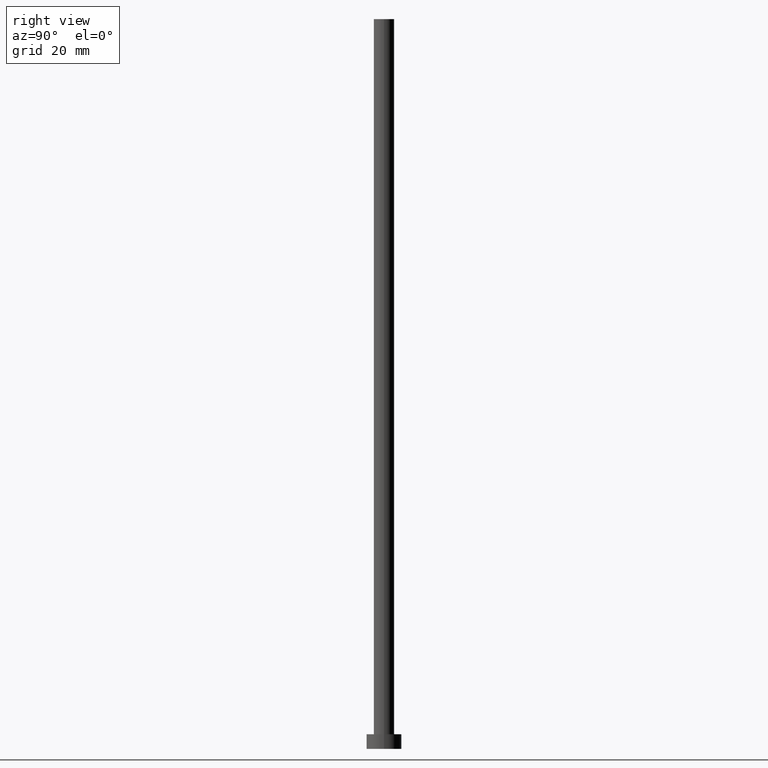
[diagram: clean part render]
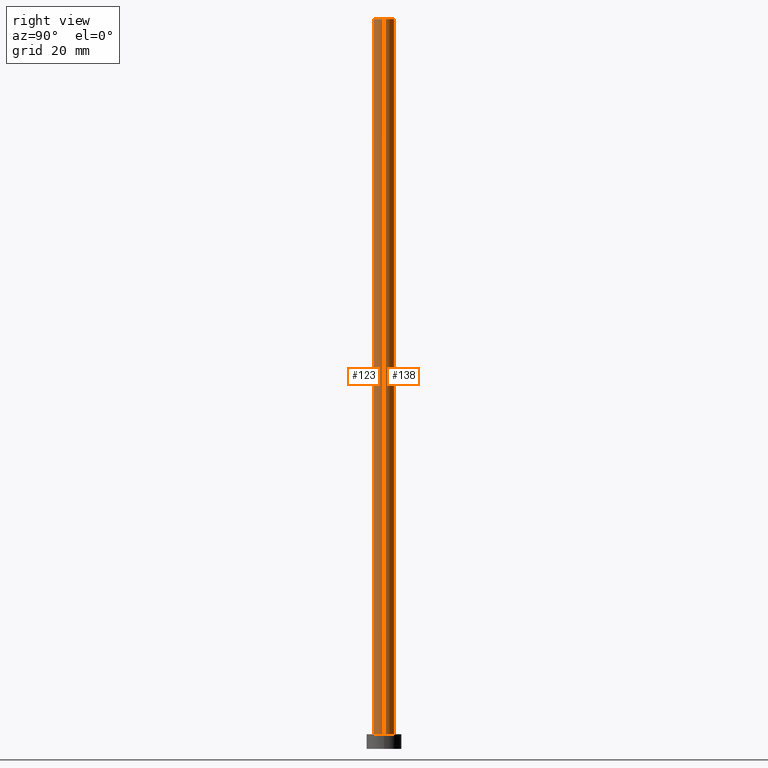
[diagram: same view with one multi-face feature highlighted, each face labeled with its STEP entity id]
A machine part, right view. The highlighted faces form ONE feature: a constant-radius fillet chain: 2 tangent blend faces with common blend radius 3.5 mm. The faces share edges in the B-rep.
Their STEP definitions:
[1] entity #123 (Cylinder):
#2 = CYLINDRICAL_SURFACE ( 'NONE', #93, 3.500000000000000000 ) ;
#10 = VERTEX_POINT ( 'NONE', #32 ) ;
#18 = DIRECTION ( 'NONE',  ( -0.000000000000000000, -0.000000000000000000, -1.000000000000000000 ) ) ;
#19 = CARTESIAN_POINT ( 'NONE',  ( 0.000000000000000000, 0.000000000000000000, 5.000000000000000000 ) ) ;
#21 = CARTESIAN_POINT ( 'NONE',  ( -3.500000000000000000, 0.000000000000000000, 5.000000000000000000 ) ) ;
#31 = ORIENTED_EDGE ( 'NONE', *, *, #141, .T. ) ;
#32 = CARTESIAN_POINT ( 'NONE',  ( -3.500000000000000000, 0.000000000000000000, 250.0000000000000000 ) ) ;
#38 = DIRECTION ( 'NONE',  ( -0.000000000000000000, -0.000000000000000000, -1.000000000000000000 ) ) ;
#39 = VECTOR ( 'NONE', #38, 1000.000000000000000 ) ;
#44 = AXIS2_PLACEMENT_3D ( 'NONE', #228, #54, #212 ) ;
#48 = CARTESIAN_POINT ( 'NONE',  ( -3.500000000000000000, 0.000000000000000000, 250.0000000000000000 ) ) ;
#54 = DIRECTION ( 'NONE',  ( 0.000000000000000000, 0.000000000000000000, 1.000000000000000000 ) ) ;
#58 = VECTOR ( 'NONE', #18, 1000.000000000000000 ) ;
#73 = DIRECTION ( 'NONE',  ( 1.000000000000000000, 0.000000000000000000, 0.000000000000000000 ) ) ;
#93 = AXIS2_PLACEMENT_3D ( 'NONE', #166, #225, #189 ) ;
#98 = DIRECTION ( 'NONE',  ( 0.000000000000000000, 0.000000000000000000, 1.000000000000000000 ) ) ;
#123 = ADVANCED_FACE ( 'NONE', ( #167 ), #2, .T. ) ;
#126 = ORIENTED_EDGE ( 'NONE', *, *, #174, .F. ) ;
#128 = CARTESIAN_POINT ( 'NONE',  ( 3.500000000000000000, 4.286263797015736595E-16, 5.000000000000000000 ) ) ;
#131 = EDGE_CURVE ( 'NONE', #10, #175, #190, .T. ) ;
#141 = EDGE_CURVE ( 'NONE', #175, #203, #220, .T. ) ;
#157 = EDGE_LOOP ( 'NONE', ( #234, #126, #202, #31 ) ) ;
#166 = CARTESIAN_POINT ( 'NONE',  ( 0.000000000000000000, 0.000000000000000000, 250.0000000000000000 ) ) ;
#167 = FACE_OUTER_BOUND ( 'NONE', #157, .T. ) ;
#168 = AXIS2_PLACEMENT_3D ( 'NONE', #19, #98, #73 ) ;
#169 = LINE ( 'NONE', #231, #39 ) ;
#174 = EDGE_CURVE ( 'NONE', #10, #255, #211, .T. ) ;
#175 = VERTEX_POINT ( 'NONE', #21 ) ;
#178 = CARTESIAN_POINT ( 'NONE',  ( 3.500000000000000000, 4.286263797015736595E-16, 250.0000000000000000 ) ) ;
#185 = EDGE_CURVE ( 'NONE', #255, #203, #169, .T. ) ;
#189 = DIRECTION ( 'NONE',  ( -1.000000000000000000, 0.000000000000000000, 0.000000000000000000 ) ) ;
#190 = LINE ( 'NONE', #48, #58 ) ;
#202 = ORIENTED_EDGE ( 'NONE', *, *, #131, .T. ) ;
#203 = VERTEX_POINT ( 'NONE', #128 ) ;
#211 = CIRCLE ( 'NONE', #44, 3.500000000000000000 ) ;
#212 = DIRECTION ( 'NONE',  ( 1.000000000000000000, 0.000000000000000000, 0.000000000000000000 ) ) ;
#220 = CIRCLE ( 'NONE', #168, 3.500000000000000000 ) ;
#225 = DIRECTION ( 'NONE',  ( -0.000000000000000000, -0.000000000000000000, -1.000000000000000000 ) ) ;
#228 = CARTESIAN_POINT ( 'NONE',  ( 0.000000000000000000, 0.000000000000000000, 250.0000000000000000 ) ) ;
#231 = CARTESIAN_POINT ( 'NONE',  ( 3.500000000000000000, 4.286263797015736595E-16, 250.0000000000000000 ) ) ;
#234 = ORIENTED_EDGE ( 'NONE', *, *, #185, .F. ) ;
#255 = VERTEX_POINT ( 'NONE', #178 ) ;
[2] entity #138 (Cylinder):
#10 = VERTEX_POINT ( 'NONE', #32 ) ;
#12 = EDGE_LOOP ( 'NONE', ( #83, #139, #104, #237 ) ) ;
#16 = DIRECTION ( 'NONE',  ( -0.000000000000000000, -0.000000000000000000, -1.000000000000000000 ) ) ;
#18 = DIRECTION ( 'NONE',  ( -0.000000000000000000, -0.000000000000000000, -1.000000000000000000 ) ) ;
#21 = CARTESIAN_POINT ( 'NONE',  ( -3.500000000000000000, 0.000000000000000000, 5.000000000000000000 ) ) ;
#32 = CARTESIAN_POINT ( 'NONE',  ( -3.500000000000000000, 0.000000000000000000, 250.0000000000000000 ) ) ;
#38 = DIRECTION ( 'NONE',  ( -0.000000000000000000, -0.000000000000000000, -1.000000000000000000 ) ) ;
#39 = VECTOR ( 'NONE', #38, 1000.000000000000000 ) ;
#48 = CARTESIAN_POINT ( 'NONE',  ( -3.500000000000000000, 0.000000000000000000, 250.0000000000000000 ) ) ;
#50 = CARTESIAN_POINT ( 'NONE',  ( 0.000000000000000000, 0.000000000000000000, 5.000000000000000000 ) ) ;
#57 = CIRCLE ( 'NONE', #235, 3.500000000000000000 ) ;
#58 = VECTOR ( 'NONE', #18, 1000.000000000000000 ) ;
#65 = CARTESIAN_POINT ( 'NONE',  ( 0.000000000000000000, 0.000000000000000000, 250.0000000000000000 ) ) ;
#75 = CIRCLE ( 'NONE', #79, 3.500000000000000000 ) ;
#79 = AXIS2_PLACEMENT_3D ( 'NONE', #252, #251, #125 ) ;
#83 = ORIENTED_EDGE ( 'NONE', *, *, #210, .F. ) ;
#97 = DIRECTION ( 'NONE',  ( -1.000000000000000000, 0.000000000000000000, 0.000000000000000000 ) ) ;
#104 = ORIENTED_EDGE ( 'NONE', *, *, #146, .T. ) ;
#119 = FACE_OUTER_BOUND ( 'NONE', #12, .T. ) ;
#125 = DIRECTION ( 'NONE',  ( 1.000000000000000000, 0.000000000000000000, 0.000000000000000000 ) ) ;
#128 = CARTESIAN_POINT ( 'NONE',  ( 3.500000000000000000, 4.286263797015736595E-16, 5.000000000000000000 ) ) ;
#129 = AXIS2_PLACEMENT_3D ( 'NONE', #65, #16, #97 ) ;
#131 = EDGE_CURVE ( 'NONE', #10, #175, #190, .T. ) ;
#138 = ADVANCED_FACE ( 'NONE', ( #119 ), #208, .T. ) ;
#139 = ORIENTED_EDGE ( 'NONE', *, *, #185, .T. ) ;
#143 = DIRECTION ( 'NONE',  ( 1.000000000000000000, 0.000000000000000000, 0.000000000000000000 ) ) ;
#144 = DIRECTION ( 'NONE',  ( 0.000000000000000000, 0.000000000000000000, 1.000000000000000000 ) ) ;
#146 = EDGE_CURVE ( 'NONE', #203, #175, #57, .T. ) ;
#169 = LINE ( 'NONE', #231, #39 ) ;
#175 = VERTEX_POINT ( 'NONE', #21 ) ;
#178 = CARTESIAN_POINT ( 'NONE',  ( 3.500000000000000000, 4.286263797015736595E-16, 250.0000000000000000 ) ) ;
#185 = EDGE_CURVE ( 'NONE', #255, #203, #169, .T. ) ;
#190 = LINE ( 'NONE', #48, #58 ) ;
#203 = VERTEX_POINT ( 'NONE', #128 ) ;
#208 = CYLINDRICAL_SURFACE ( 'NONE', #129, 3.500000000000000000 ) ;
#210 = EDGE_CURVE ( 'NONE', #255, #10, #75, .T. ) ;
#231 = CARTESIAN_POINT ( 'NONE',  ( 3.500000000000000000, 4.286263797015736595E-16, 250.0000000000000000 ) ) ;
#235 = AXIS2_PLACEMENT_3D ( 'NONE', #50, #144, #143 ) ;
#237 = ORIENTED_EDGE ( 'NONE', *, *, #131, .F. ) ;
#251 = DIRECTION ( 'NONE',  ( 0.000000000000000000, 0.000000000000000000, 1.000000000000000000 ) ) ;
#252 = CARTESIAN_POINT ( 'NONE',  ( 0.000000000000000000, 0.000000000000000000, 250.0000000000000000 ) ) ;
#255 = VERTEX_POINT ( 'NONE', #178 ) ;